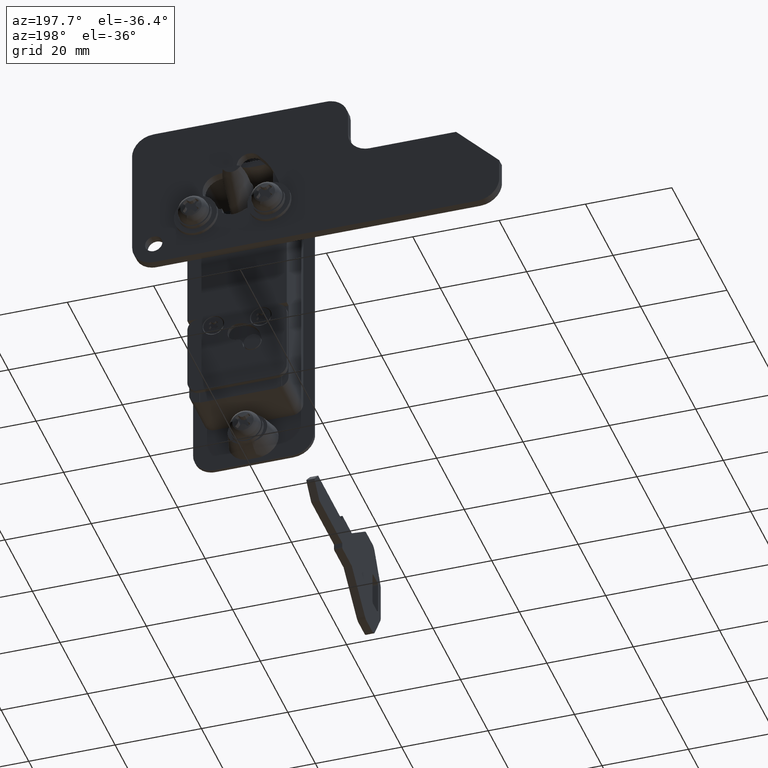
[diagram: clean part render]
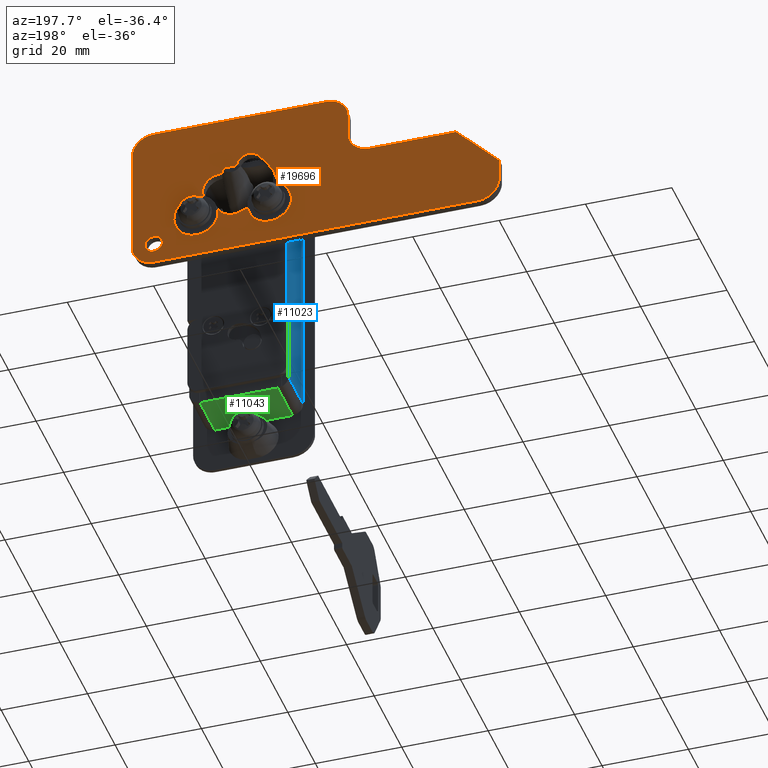
[diagram: same view with three faces highlighted in distinct colors, each labeled with its STEP entity id]
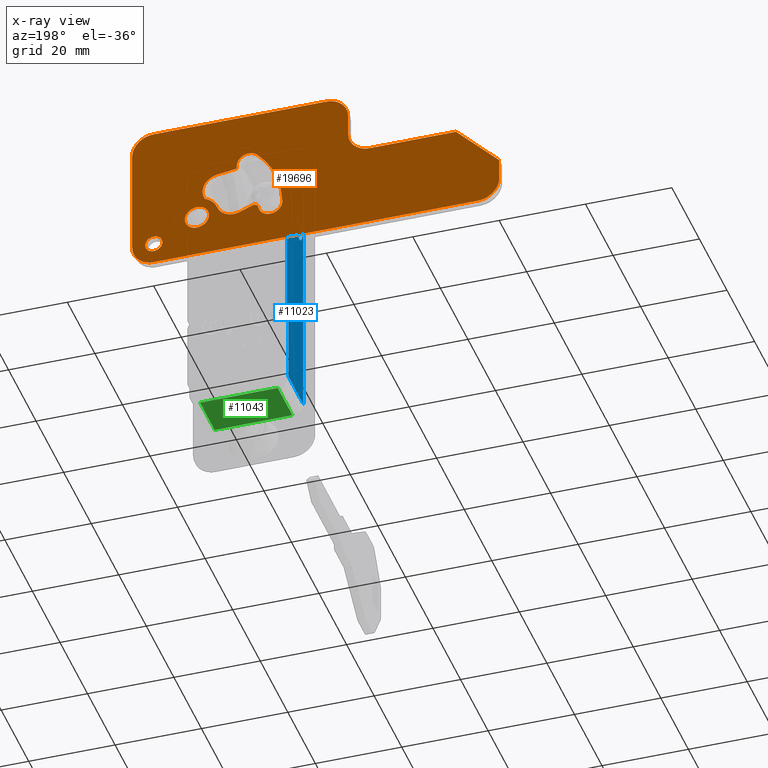
[diagram: x-ray of the same camera — body ghosted, the three highlighted faces saturated]
A machine part, auxiliary view with three faces highlighted in distinct colors.
The next image is the same camera in x-ray (body ghosted, the three faces saturated) — at least one of them is partly hidden behind the body in this view.
Their STEP definitions:

[orange] entity #19696 — the highlighted face is a freeform B-spline surface patch.
#18353=CARTESIAN_POINT('',(2.0,-16.506165332546960,-5.156918191623599));
#18354=VERTEX_POINT('',#18353);
#18360=CARTESIAN_POINT('',(2.0,-18.500000000000000,-3.0));
#18361=VERTEX_POINT('',#18360);
#18362=CARTESIAN_POINT('',(2.000000000000000,-16.506165332546960,-5.156918191623599));
#18363=CARTESIAN_POINT('',(2.000000000000000,-16.499999999999996,-5.078580214184028));
#18364=CARTESIAN_POINT('',(2.0,-16.500000000000000,-5.0));
#18365=CARTESIAN_POINT('',(2.000000000000000,-16.499999999999993,-3.0));
#18366=CARTESIAN_POINT('',(2.0,-18.500000000000000,-3.0));
#18374=(BOUNDED_CURVE()B_SPLINE_CURVE(2,(#18362,#18363,#18364,#18365,#18366),.UNSPECIFIED.,.F.,.U.)B_SPLINE_CURVE_WITH_KNOTS((3,2,3),(0.736331300603894,0.750000000000000,1.0),.UNSPECIFIED.)CURVE()GEOMETRIC_REPRESENTATION_ITEM()RATIONAL_B_SPLINE_CURVE((0.969723356111561,0.983986122547524,1.0,0.707106781186548,1.0))REPRESENTATION_ITEM(''));
#18375=EDGE_CURVE('',#18354,#18361,#18374,.T.);
#18377=CARTESIAN_POINT('',(2.0,-20.493834667453040,-4.843081808376400));
#18378=VERTEX_POINT('',#18377);
#18379=CARTESIAN_POINT('',(2.0,-18.500000000000000,-3.0));
#18380=CARTESIAN_POINT('',(1.999999999999999,-20.348780983004065,-3.000000000000001));
#18381=CARTESIAN_POINT('',(2.0,-20.493834667453040,-4.843081808376400));
#18389=(BOUNDED_CURVE()B_SPLINE_CURVE(2,(#18379,#18380,#18381),.UNSPECIFIED.,.F.,.U.)B_SPLINE_CURVE_WITH_KNOTS((3,3),(0.0,0.236331300603894),.UNSPECIFIED.)CURVE()GEOMETRIC_REPRESENTATION_ITEM()RATIONAL_B_SPLINE_CURVE((1.0,0.723120658639023,0.969723356111560))REPRESENTATION_ITEM(''));
#18390=EDGE_CURVE('',#18361,#18378,#18389,.T.);
#18436=CARTESIAN_POINT('',(2.0,-18.500000000000000,-7.0));
#18437=VERTEX_POINT('',#18436);
#18438=CARTESIAN_POINT('',(2.000000000000000,-20.493834667453040,-4.843081808376400));
#18439=CARTESIAN_POINT('',(2.000000000000000,-20.500000000000000,-4.921419785815973));
#18440=CARTESIAN_POINT('',(2.0,-20.500000000000000,-5.0));
#18441=CARTESIAN_POINT('',(2.000000000000000,-20.499999999999993,-6.999999999999999));
#18442=CARTESIAN_POINT('',(2.0,-18.500000000000000,-7.0));
#18450=(BOUNDED_CURVE()B_SPLINE_CURVE(2,(#18438,#18439,#18440,#18441,#18442),.UNSPECIFIED.,.F.,.U.)B_SPLINE_CURVE_WITH_KNOTS((3,2,3),(0.236331300603894,0.250000000000000,0.500000000000000),.UNSPECIFIED.)CURVE()GEOMETRIC_REPRESENTATION_ITEM()RATIONAL_B_SPLINE_CURVE((0.969723356111561,0.983986122547524,1.0,0.707106781186548,1.0))REPRESENTATION_ITEM(''));
#18451=EDGE_CURVE('',#18378,#18437,#18450,.T.);
#18453=CARTESIAN_POINT('',(2.0,-18.500000000000000,-7.0));
#18454=CARTESIAN_POINT('',(2.0,-16.651219016995945,-6.999999999999999));
#18455=CARTESIAN_POINT('',(2.000000000000000,-16.506165332546960,-5.156918191623599));
#18463=(BOUNDED_CURVE()B_SPLINE_CURVE(2,(#18453,#18454,#18455),.UNSPECIFIED.,.F.,.U.)B_SPLINE_CURVE_WITH_KNOTS((3,3),(0.500000000000000,0.736331300603894),.UNSPECIFIED.)CURVE()GEOMETRIC_REPRESENTATION_ITEM()RATIONAL_B_SPLINE_CURVE((1.0,0.723120658639024,0.969723356111559))REPRESENTATION_ITEM(''));
#18464=EDGE_CURVE('',#18437,#18354,#18463,.T.);
#18535=CARTESIAN_POINT('',(2.0,-5.708631465581616,-0.219685468476010));
#18536=VERTEX_POINT('',#18535);
#18542=CARTESIAN_POINT('',(2.0,-8.499999999999901,2.799999999999999));
#18543=VERTEX_POINT('',#18542);
#18544=CARTESIAN_POINT('',(2.0,-5.708631465581616,-0.219685468476010));
#18545=CARTESIAN_POINT('',(2.000000000000000,-5.699999999999900,-0.110012300061551));
#18546=CARTESIAN_POINT('',(2.0,-5.699999999999900,-5.204577E-016));
#18547=CARTESIAN_POINT('',(2.0,-5.699999999999899,2.800000000000000));
#18548=CARTESIAN_POINT('',(2.0,-8.499999999999901,2.799999999999999));
#18556=(BOUNDED_CURVE()B_SPLINE_CURVE(2,(#18544,#18545,#18546,#18547,#18548),.UNSPECIFIED.,.F.,.U.)B_SPLINE_CURVE_WITH_KNOTS((3,2,3),(0.736331300578964,0.750000000000000,1.0),.UNSPECIFIED.)CURVE()GEOMETRIC_REPRESENTATION_ITEM()RATIONAL_B_SPLINE_CURVE((0.969723356059534,0.983986122518317,1.0,0.707106781186547,1.0))REPRESENTATION_ITEM(''));
#18557=EDGE_CURVE('',#18536,#18543,#18556,.T.);
#18559=CARTESIAN_POINT('',(2.0,-11.291368534418179,0.219685468476008));
#18560=VERTEX_POINT('',#18559);
#18561=CARTESIAN_POINT('',(2.0,-8.499999999999901,2.799999999999999));
#18562=CARTESIAN_POINT('',(2.000000000000000,-11.088293375828023,2.800000000000001));
#18563=CARTESIAN_POINT('',(2.000000000000000,-11.291368534418188,0.219685468476008));
#18571=(BOUNDED_CURVE()B_SPLINE_CURVE(2,(#18561,#18562,#18563),.UNSPECIFIED.,.F.,.U.)B_SPLINE_CURVE_WITH_KNOTS((3,3),(0.0,0.236331300578965),.UNSPECIFIED.)CURVE()GEOMETRIC_REPRESENTATION_ITEM()RATIONAL_B_SPLINE_CURVE((1.0,0.723120658668230,0.969723356059534))REPRESENTATION_ITEM(''));
#18572=EDGE_CURVE('',#18543,#18560,#18571,.T.);
#18618=CARTESIAN_POINT('',(2.0,-8.499999999999901,-2.800000000000000));
#18619=VERTEX_POINT('',#18618);
#18620=CARTESIAN_POINT('',(2.0,-11.291368534418181,0.219685468476008));
#18621=CARTESIAN_POINT('',(2.000000000000000,-11.299999999999901,0.110012300061549));
#18622=CARTESIAN_POINT('',(2.0,-11.299999999999899,-5.204577E-016));
#18623=CARTESIAN_POINT('',(2.0,-11.299999999999901,-2.800000000000000));
#18624=CARTESIAN_POINT('',(2.0,-8.499999999999901,-2.800000000000000));
#18632=(BOUNDED_CURVE()B_SPLINE_CURVE(2,(#18620,#18621,#18622,#18623,#18624),.UNSPECIFIED.,.F.,.U.)B_SPLINE_CURVE_WITH_KNOTS((3,2,3),(0.236331300578965,0.250000000000000,0.500000000000000),.UNSPECIFIED.)CURVE()GEOMETRIC_REPRESENTATION_ITEM()RATIONAL_B_SPLINE_CURVE((0.969723356059534,0.983986122518317,1.0,0.707106781186547,1.0))REPRESENTATION_ITEM(''));
#18633=EDGE_CURVE('',#18560,#18619,#18632,.T.);
#18635=CARTESIAN_POINT('',(2.0,-8.499999999999901,-2.800000000000000));
#18636=CARTESIAN_POINT('',(2.000000000000000,-5.911706624171777,-2.800000000000001));
#18637=CARTESIAN_POINT('',(2.000000000000000,-5.708631465581616,-0.219685468476010));
#18645=(BOUNDED_CURVE()B_SPLINE_CURVE(2,(#18635,#18636,#18637),.UNSPECIFIED.,.F.,.U.)B_SPLINE_CURVE_WITH_KNOTS((3,3),(0.500000000000000,0.736331300578965),.UNSPECIFIED.)CURVE()GEOMETRIC_REPRESENTATION_ITEM()RATIONAL_B_SPLINE_CURVE((1.0,0.723120658668230,0.969723356059534))REPRESENTATION_ITEM(''));
#18646=EDGE_CURVE('',#18619,#18536,#18645,.T.);
#18698=CARTESIAN_POINT('',(2.0,-3.724927298301265,10.682482456983440));
#18699=VERTEX_POINT('',#18698);
#18705=CARTESIAN_POINT('',(2.0,-6.619694577197700,4.647948377065371));
#18706=VERTEX_POINT('',#18705);
#18707=CARTESIAN_POINT('',(2.0,-3.724927298301267,10.682482456983440));
#18708=CARTESIAN_POINT('',(2.000000000000000,-5.868083674446925,10.396962948355025));
#18709=CARTESIAN_POINT('',(2.0,-6.803212923379731,8.447559467745744));
#18710=CARTESIAN_POINT('',(2.000000000000000,-7.738342172312537,6.498155987136467));
#18711=CARTESIAN_POINT('',(2.0,-6.619694577197700,4.647948377065371));
#18719=(BOUNDED_CURVE()B_SPLINE_CURVE(2,(#18707,#18708,#18709,#18710,#18711),.UNSPECIFIED.,.F.,.U.)B_SPLINE_CURVE_WITH_KNOTS((3,2,3),(0.0,0.500000000000000,1.0),.UNSPECIFIED.)CURVE()GEOMETRIC_REPRESENTATION_ITEM()RATIONAL_B_SPLINE_CURVE((1.0,0.879712993348293,1.0,0.879712993348293,1.0))REPRESENTATION_ITEM(''));
#18720=EDGE_CURVE('',#18699,#18706,#18719,.T.);
#18760=CARTESIAN_POINT('',(2.0,-3.771961330339195,1.668719517747750));
#18761=VERTEX_POINT('',#18760);
#18762=CARTESIAN_POINT('',(2.0,-3.771961330339195,1.668719517747750));
#18763=CARTESIAN_POINT('',(2.0,-4.524267581803403,3.800253346292745));
#18764=CARTESIAN_POINT('',(2.0,-6.619694577197699,4.647948377065373));
#18772=(BOUNDED_CURVE()B_SPLINE_CURVE(2,(#18762,#18763,#18764),.UNSPECIFIED.,.F.,.U.)CURVE()GEOMETRIC_REPRESENTATION_ITEM()QUASI_UNIFORM_CURVE()RATIONAL_B_SPLINE_CURVE((1.0,0.911638687039026,1.0))REPRESENTATION_ITEM(''));
#18773=EDGE_CURVE('',#18761,#18706,#18772,.T.);
#18815=CARTESIAN_POINT('',(2.0,1.452227357557548,-0.727067976568367));
#18816=VERTEX_POINT('',#18815);
#18817=CARTESIAN_POINT('',(2.0,-3.771961330339194,1.668719517747751));
#18818=CARTESIAN_POINT('',(2.000000000000000,-3.207907948622407,0.070568284820988));
#18819=CARTESIAN_POINT('',(2.0,-1.667405426283513,-0.635898670810326));
#18820=CARTESIAN_POINT('',(2.000000000000000,-0.126902903944619,-1.342365626441640));
#18821=CARTESIAN_POINT('',(2.0,1.452227357557548,-0.727067976568368));
#18829=(BOUNDED_CURVE()B_SPLINE_CURVE(2,(#18817,#18818,#18819,#18820,#18821),.UNSPECIFIED.,.F.,.U.)B_SPLINE_CURVE_WITH_KNOTS((3,2,3),(0.0,0.500000000000000,1.0),.UNSPECIFIED.)CURVE()GEOMETRIC_REPRESENTATION_ITEM()RATIONAL_B_SPLINE_CURVE((1.0,0.920763774771993,1.0,0.920763774771993,1.0))REPRESENTATION_ITEM(''));
#18830=EDGE_CURVE('',#18761,#18816,#18829,.T.);
#18853=CARTESIAN_POINT('',(2.0,4.372808160610620,0.410916994142096));
#18854=VERTEX_POINT('',#18853);
#18855=CARTESIAN_POINT('',(2.0,4.372808160610620,0.410916994142096));
#18856=CARTESIAN_POINT('',(2.0,1.452227357557548,-0.727067976568367));
#18857=QUASI_UNIFORM_CURVE('',1,(#18855,#18856),.UNSPECIFIED.,.F.,.U.);
#18858=EDGE_CURVE('',#18854,#18816,#18857,.T.);
#18900=CARTESIAN_POINT('',(2.0,5.726426587349770,-0.383784476809226));
#18901=VERTEX_POINT('',#18900);
#18902=CARTESIAN_POINT('',(2.0,5.726426587349770,-0.383784476809226));
#18903=CARTESIAN_POINT('',(2.000000000000000,5.660011899428978,0.096192027627182));
#18904=CARTESIAN_POINT('',(2.0,5.242153711748959,0.341514041664296));
#18905=CARTESIAN_POINT('',(2.000000000000000,4.824295524068941,0.586836055701410));
#18906=CARTESIAN_POINT('',(2.0,4.372808160610621,0.410916994142095));
#18914=(BOUNDED_CURVE()B_SPLINE_CURVE(2,(#18902,#18903,#18904,#18905,#18906),.UNSPECIFIED.,.F.,.U.)B_SPLINE_CURVE_WITH_KNOTS((3,2,3),(0.0,0.500000000000000,1.0),.UNSPECIFIED.)CURVE()GEOMETRIC_REPRESENTATION_ITEM()RATIONAL_B_SPLINE_CURVE((1.0,0.899919655150301,1.0,0.899919655150301,1.0))REPRESENTATION_ITEM(''));
#18915=EDGE_CURVE('',#18901,#18854,#18914,.T.);
#18961=CARTESIAN_POINT('',(2.0,11.300000000000001,-5.204577E-016));
#18962=VERTEX_POINT('',#18961);
#18963=CARTESIAN_POINT('',(2.0,5.726426587349766,-0.383784476809225));
#18964=CARTESIAN_POINT('',(2.000000000000000,6.084693240334018,-2.972943036888907));
#18965=CARTESIAN_POINT('',(2.0,8.692346620167008,-2.793385540470618));
#18966=CARTESIAN_POINT('',(2.000000000000000,11.300000000000001,-2.613828044052329));
#18967=CARTESIAN_POINT('',(2.0,11.300000000000001,5.204577E-016));
#18975=(BOUNDED_CURVE()B_SPLINE_CURVE(2,(#18963,#18964,#18965,#18966,#18967),.UNSPECIFIED.,.F.,.U.)B_SPLINE_CURVE_WITH_KNOTS((3,2,3),(0.0,0.500000000000000,1.0),.UNSPECIFIED.)CURVE()GEOMETRIC_REPRESENTATION_ITEM()RATIONAL_B_SPLINE_CURVE((1.0,0.730990841764867,1.0,0.730990841764867,1.0))REPRESENTATION_ITEM(''));
#18976=EDGE_CURVE('',#18901,#18962,#18975,.T.);
#19016=CARTESIAN_POINT('',(2.0,5.500713987322430,14.000713987322120));
#19017=VERTEX_POINT('',#19016);
#19018=CARTESIAN_POINT('',(2.0,11.300000000000001,-5.204577E-016));
#19019=CARTESIAN_POINT('',(2.000000000000000,11.300000000000098,8.201428534987187));
#19020=CARTESIAN_POINT('',(2.0,5.500713987322430,14.000713987322120));
#19028=(BOUNDED_CURVE()B_SPLINE_CURVE(2,(#19018,#19019,#19020),.UNSPECIFIED.,.F.,.U.)CURVE()GEOMETRIC_REPRESENTATION_ITEM()QUASI_UNIFORM_CURVE()RATIONAL_B_SPLINE_CURVE((1.0,0.923879532511288,1.0))REPRESENTATION_ITEM(''));
#19029=EDGE_CURVE('',#18962,#19017,#19028,.T.);
#19075=CARTESIAN_POINT('',(2.0,0.720815000000101,12.020814999999800));
#19076=VERTEX_POINT('',#19075);
#19077=CARTESIAN_POINT('',(2.0,5.500713987322439,14.000713987322129));
#19078=CARTESIAN_POINT('',(2.000000000000000,4.177787778755605,15.323640195888975));
#19079=CARTESIAN_POINT('',(2.0,2.449301389377853,14.607677691031411));
#19080=CARTESIAN_POINT('',(2.000000000000000,0.720815000000100,13.891715186173842));
#19081=CARTESIAN_POINT('',(2.0,0.720815000000100,12.020814999999800));
#19089=(BOUNDED_CURVE()B_SPLINE_CURVE(2,(#19077,#19078,#19079,#19080,#19081),.UNSPECIFIED.,.F.,.U.)B_SPLINE_CURVE_WITH_KNOTS((3,2,3),(0.0,0.500000000000000,1.0),.UNSPECIFIED.)CURVE()GEOMETRIC_REPRESENTATION_ITEM()RATIONAL_B_SPLINE_CURVE((1.0,0.831469612302545,1.0,0.831469612302545,1.0))REPRESENTATION_ITEM(''));
#19090=EDGE_CURVE('',#19017,#19076,#19089,.T.);
#19113=CARTESIAN_POINT('',(2.0,0.720815000000101,11.274762000000001));
#19114=VERTEX_POINT('',#19113);
#19115=CARTESIAN_POINT('',(2.0,0.720815000000101,11.274762000000001));
#19116=CARTESIAN_POINT('',(2.0,0.720815000000101,12.020814999999800));
#19117=QUASI_UNIFORM_CURVE('',1,(#19115,#19116),.UNSPECIFIED.,.F.,.U.);
#19118=EDGE_CURVE('',#19114,#19076,#19117,.T.);
#19139=CARTESIAN_POINT('',(2.0,-3.724927298301265,10.682482456983440));
#19140=CARTESIAN_POINT('',(2.0,0.720815000000101,11.274762000000001));
#19141=QUASI_UNIFORM_CURVE('',1,(#19139,#19140),.UNSPECIFIED.,.F.,.U.);
#19142=EDGE_CURVE('',#18699,#19114,#19141,.T.);
#19162=CARTESIAN_POINT('',(2.0,26.500000000000000,20.0));
#19163=VERTEX_POINT('',#19162);
#19169=CARTESIAN_POINT('',(2.0,26.500000000000000,15.0));
#19170=VERTEX_POINT('',#19169);
#19171=CARTESIAN_POINT('',(2.0,26.500000000000000,15.0));
#19172=CARTESIAN_POINT('',(2.0,26.500000000000000,20.0));
#19173=QUASI_UNIFORM_CURVE('',1,(#19171,#19172),.UNSPECIFIED.,.F.,.U.);
#19174=EDGE_CURVE('',#19170,#19163,#19173,.T.);
#19214=CARTESIAN_POINT('',(2.0,31.500000000000000,10.0));
#19215=VERTEX_POINT('',#19214);
#19216=CARTESIAN_POINT('',(2.0,26.500000000000000,15.0));
#19217=CARTESIAN_POINT('',(2.000000000000000,26.500000000000000,9.999999999999998));
#19218=CARTESIAN_POINT('',(2.0,31.500000000000000,9.999999999999998));
#19226=(BOUNDED_CURVE()B_SPLINE_CURVE(2,(#19216,#19217,#19218),.UNSPECIFIED.,.F.,.U.)CURVE()GEOMETRIC_REPRESENTATION_ITEM()QUASI_UNIFORM_CURVE()RATIONAL_B_SPLINE_CURVE((1.0,0.707106781186548,1.0))REPRESENTATION_ITEM(''));
#19227=EDGE_CURVE('',#19170,#19215,#19226,.T.);
#19250=CARTESIAN_POINT('',(2.0,51.500000000000000,10.0));
#19251=VERTEX_POINT('',#19250);
#19252=CARTESIAN_POINT('',(2.0,51.500000000000000,10.0));
#19253=CARTESIAN_POINT('',(2.0,31.500000000000000,10.0));
#19254=QUASI_UNIFORM_CURVE('',1,(#19252,#19253),.UNSPECIFIED.,.F.,.U.);
#19255=EDGE_CURVE('',#19251,#19215,#19254,.T.);
#19278=CARTESIAN_POINT('',(2.0,61.500000000000000,3.765665E-015));
#19279=VERTEX_POINT('',#19278);
#19280=CARTESIAN_POINT('',(2.0,61.500000000000000,3.765665E-015));
#19281=CARTESIAN_POINT('',(2.0,51.500000000000000,10.0));
#19282=QUASI_UNIFORM_CURVE('',1,(#19280,#19281),.UNSPECIFIED.,.F.,.U.);
#19283=EDGE_CURVE('',#19279,#19251,#19282,.T.);
#19306=CARTESIAN_POINT('',(2.0,61.500000000000000,-5.0));
#19307=VERTEX_POINT('',#19306);
#19308=CARTESIAN_POINT('',(2.0,61.500000000000000,-5.0));
#19309=CARTESIAN_POINT('',(2.0,61.500000000000000,3.765665E-015));
#19310=QUASI_UNIFORM_CURVE('',1,(#19308,#19309),.UNSPECIFIED.,.F.,.U.);
#19311=EDGE_CURVE('',#19307,#19279,#19310,.T.);
#19351=CARTESIAN_POINT('',(2.0,56.500000000000000,-10.0));
#19352=VERTEX_POINT('',#19351);
#19353=CARTESIAN_POINT('',(2.0,56.500000000000000,-10.0));
#19354=CARTESIAN_POINT('',(2.000000000000000,61.500000000000007,-10.000000000000002));
#19355=CARTESIAN_POINT('',(2.0,61.500000000000000,-5.0));
#19363=(BOUNDED_CURVE()B_SPLINE_CURVE(2,(#19353,#19354,#19355),.UNSPECIFIED.,.F.,.U.)CURVE()GEOMETRIC_REPRESENTATION_ITEM()QUASI_UNIFORM_CURVE()RATIONAL_B_SPLINE_CURVE((1.0,0.707106781186548,1.0))REPRESENTATION_ITEM(''));
#19364=EDGE_CURVE('',#19352,#19307,#19363,.T.);
#19387=CARTESIAN_POINT('',(2.0,-18.500000000000000,-10.0));
#19388=VERTEX_POINT('',#19387);
#19389=CARTESIAN_POINT('',(2.0,-18.500000000000000,-10.0));
#19390=CARTESIAN_POINT('',(2.0,56.500000000000000,-10.0));
#19391=QUASI_UNIFORM_CURVE('',1,(#19389,#19390),.UNSPECIFIED.,.F.,.U.);
#19392=EDGE_CURVE('',#19388,#19352,#19391,.T.);
#19432=CARTESIAN_POINT('',(2.0,-23.500000000000000,-5.0));
#19433=VERTEX_POINT('',#19432);
#19434=CARTESIAN_POINT('',(2.0,-23.500000000000000,-5.0));
#19435=CARTESIAN_POINT('',(2.000000000000000,-23.500000000000004,-10.000000000000002));
#19436=CARTESIAN_POINT('',(2.0,-18.500000000000000,-10.0));
#19444=(BOUNDED_CURVE()B_SPLINE_CURVE(2,(#19434,#19435,#19436),.UNSPECIFIED.,.F.,.U.)CURVE()GEOMETRIC_REPRESENTATION_ITEM()QUASI_UNIFORM_CURVE()RATIONAL_B_SPLINE_CURVE((1.0,0.707106781186548,1.0))REPRESENTATION_ITEM(''));
#19445=EDGE_CURVE('',#19433,#19388,#19444,.T.);
#19468=CARTESIAN_POINT('',(2.0,-23.500000000000000,20.0));
#19469=VERTEX_POINT('',#19468);
#19470=CARTESIAN_POINT('',(2.0,-23.500000000000000,20.0));
#19471=CARTESIAN_POINT('',(2.0,-23.500000000000000,-5.0));
#19472=QUASI_UNIFORM_CURVE('',1,(#19470,#19471),.UNSPECIFIED.,.F.,.U.);
#19473=EDGE_CURVE('',#19469,#19433,#19472,.T.);
#19513=CARTESIAN_POINT('',(2.0,-18.500000000000000,25.0));
#19514=VERTEX_POINT('',#19513);
#19515=CARTESIAN_POINT('',(2.0,-18.500000000000000,25.0));
#19516=CARTESIAN_POINT('',(2.000000000000000,-23.500000000000004,25.0));
#19517=CARTESIAN_POINT('',(2.0,-23.500000000000000,20.0));
#19525=(BOUNDED_CURVE()B_SPLINE_CURVE(2,(#19515,#19516,#19517),.UNSPECIFIED.,.F.,.U.)CURVE()GEOMETRIC_REPRESENTATION_ITEM()QUASI_UNIFORM_CURVE()RATIONAL_B_SPLINE_CURVE((1.0,0.707106781186548,1.0))REPRESENTATION_ITEM(''));
#19526=EDGE_CURVE('',#19514,#19469,#19525,.T.);
#19549=CARTESIAN_POINT('',(2.0,21.500000000000000,25.0));
#19550=VERTEX_POINT('',#19549);
#19551=CARTESIAN_POINT('',(2.0,21.500000000000000,25.0));
#19552=CARTESIAN_POINT('',(2.0,-18.500000000000000,25.0));
#19553=QUASI_UNIFORM_CURVE('',1,(#19551,#19552),.UNSPECIFIED.,.F.,.U.);
#19554=EDGE_CURVE('',#19550,#19514,#19553,.T.);
#19592=CARTESIAN_POINT('',(2.0,26.500000000000000,20.0));
#19593=CARTESIAN_POINT('',(2.000000000000000,26.500000000000000,25.0));
#19594=CARTESIAN_POINT('',(2.0,21.500000000000000,25.0));
#19602=(BOUNDED_CURVE()B_SPLINE_CURVE(2,(#19592,#19593,#19594),.UNSPECIFIED.,.F.,.U.)CURVE()GEOMETRIC_REPRESENTATION_ITEM()QUASI_UNIFORM_CURVE()RATIONAL_B_SPLINE_CURVE((1.0,0.707106781186548,1.0))REPRESENTATION_ITEM(''));
#19603=EDGE_CURVE('',#19163,#19550,#19602,.T.);
#19653=CARTESIAN_POINT('',(2.0,-27.745749835253509,26.748249932163208));
#19654=CARTESIAN_POINT('',(2.0,65.745752115131168,26.748249932163208));
#19655=CARTESIAN_POINT('',(2.0,-27.745749835253509,-11.748250870936360));
#19656=CARTESIAN_POINT('',(2.0,65.745752115131168,-11.748250870936360));
#19657=B_SPLINE_SURFACE_WITH_KNOTS('',1,1,((#19653,#19655),(#19654,#19656)),.UNSPECIFIED.,.F.,.F.,.U.,(2,2),(2,2),(0.0,93.491501950384674),(0.0,38.496500803099572),.UNSPECIFIED.);
#19658=ORIENTED_EDGE('',*,*,#19603,.T.);
#19659=ORIENTED_EDGE('',*,*,#19554,.T.);
#19660=ORIENTED_EDGE('',*,*,#19526,.T.);
#19661=ORIENTED_EDGE('',*,*,#19473,.T.);
#19662=ORIENTED_EDGE('',*,*,#19445,.T.);
#19663=ORIENTED_EDGE('',*,*,#19392,.T.);
#19664=ORIENTED_EDGE('',*,*,#19364,.T.);
#19665=ORIENTED_EDGE('',*,*,#19311,.T.);
#19666=ORIENTED_EDGE('',*,*,#19283,.T.);
#19667=ORIENTED_EDGE('',*,*,#19255,.T.);
#19668=ORIENTED_EDGE('',*,*,#19227,.F.);
#19669=ORIENTED_EDGE('',*,*,#19174,.T.);
#19670=EDGE_LOOP('',(#19658,#19659,#19660,#19661,#19662,#19663,#19664,#19665,#19666,#19667,#19668,#19669));
#19671=FACE_OUTER_BOUND('',#19670,.T.);
#19672=ORIENTED_EDGE('',*,*,#19142,.T.);
#19673=ORIENTED_EDGE('',*,*,#19118,.T.);
#19674=ORIENTED_EDGE('',*,*,#19090,.F.);
#19675=ORIENTED_EDGE('',*,*,#19029,.F.);
#19676=ORIENTED_EDGE('',*,*,#18976,.F.);
#19677=ORIENTED_EDGE('',*,*,#18915,.T.);
#19678=ORIENTED_EDGE('',*,*,#18858,.T.);
#19679=ORIENTED_EDGE('',*,*,#18830,.F.);
#19680=ORIENTED_EDGE('',*,*,#18773,.T.);
#19681=ORIENTED_EDGE('',*,*,#18720,.F.);
#19682=EDGE_LOOP('',(#19672,#19673,#19674,#19675,#19676,#19677,#19678,#19679,#19680,#19681));
#19683=FACE_BOUND('',#19682,.T.);
#19684=ORIENTED_EDGE('',*,*,#18646,.F.);
#19685=ORIENTED_EDGE('',*,*,#18633,.F.);
#19686=ORIENTED_EDGE('',*,*,#18572,.F.);
#19687=ORIENTED_EDGE('',*,*,#18557,.F.);
#19688=EDGE_LOOP('',(#19684,#19685,#19686,#19687));
#19689=FACE_BOUND('',#19688,.T.);
#19690=ORIENTED_EDGE('',*,*,#18464,.F.);
#19691=ORIENTED_EDGE('',*,*,#18451,.F.);
#19692=ORIENTED_EDGE('',*,*,#18390,.F.);
#19693=ORIENTED_EDGE('',*,*,#18375,.F.);
#19694=EDGE_LOOP('',(#19690,#19691,#19692,#19693));
#19695=FACE_BOUND('',#19694,.T.);
#19696=ADVANCED_FACE('',(#19671,#19683,#19689,#19695),#19657,.F.);

[blue] entity #11023 — the highlighted face is a freeform B-spline surface patch.
#7473=CARTESIAN_POINT('',(-8.992381896956347,11.500000000180190,-2.191990844483901));
#7474=VERTEX_POINT('',#7473);
#7480=CARTESIAN_POINT('',(-9.500000000000000,11.500000000000000,-2.250000000006411));
#7481=VERTEX_POINT('',#7480);
#7482=CARTESIAN_POINT('',(-9.500000000000000,11.500000000000000,-2.250000000006411));
#7483=CARTESIAN_POINT('',(-9.242876386899560,11.499999999999998,-2.250000000006412));
#7484=CARTESIAN_POINT('',(-8.992381896956347,11.500000000180188,-2.191990844483901));
#7492=(BOUNDED_CURVE()B_SPLINE_CURVE(2,(#7482,#7483,#7484),.UNSPECIFIED.,.F.,.U.)B_SPLINE_CURVE_WITH_KNOTS((3,3),(0.0,0.038577028440443),.UNSPECIFIED.)CURVE()GEOMETRIC_REPRESENTATION_ITEM()RATIONAL_B_SPLINE_CURVE((1.0,0.954804199871282,0.923556557078197))REPRESENTATION_ITEM(''));
#7493=EDGE_CURVE('',#7481,#7474,#7492,.T.);
#7495=CARTESIAN_POINT('',(-9.500000000000000,11.500000000000000,2.249999999993678));
#7496=VERTEX_POINT('',#7495);
#7497=CARTESIAN_POINT('',(-9.500000000000000,11.500000000000000,2.249999999993678));
#7498=CARTESIAN_POINT('',(-11.750000000000044,11.500000000000000,2.249999999993678));
#7499=CARTESIAN_POINT('',(-11.750000000000041,11.500000000000000,-6.366463E-012));
#7500=CARTESIAN_POINT('',(-11.750000000000044,11.500000000000000,-2.250000000006412));
#7501=CARTESIAN_POINT('',(-9.500000000000000,11.500000000000000,-2.250000000006411));
#7509=(BOUNDED_CURVE()B_SPLINE_CURVE(2,(#7497,#7498,#7499,#7500,#7501),.UNSPECIFIED.,.F.,.U.)B_SPLINE_CURVE_WITH_KNOTS((3,2,3),(0.500000000000000,0.750000000000000,1.0),.UNSPECIFIED.)CURVE()GEOMETRIC_REPRESENTATION_ITEM()RATIONAL_B_SPLINE_CURVE((1.0,0.707106781186548,1.0,0.707106781186548,1.0))REPRESENTATION_ITEM(''));
#7510=EDGE_CURVE('',#7496,#7481,#7509,.T.);
#7512=CARTESIAN_POINT('',(-7.250085672866086,11.500000000255991,-0.019634706768004));
#7513=VERTEX_POINT('',#7512);
#7514=CARTESIAN_POINT('',(-7.250085672866086,11.500000000255994,-0.019634706768005));
#7515=CARTESIAN_POINT('',(-7.249999999999956,11.500000000000000,-0.009817541241116));
#7516=CARTESIAN_POINT('',(-7.249999999999955,11.500000000000000,-6.366463E-012));
#7517=CARTESIAN_POINT('',(-7.249999999999955,11.500000000000000,2.249999999993678));
#7518=CARTESIAN_POINT('',(-9.500000000000000,11.500000000000000,2.249999999993678));
#7526=(BOUNDED_CURVE()B_SPLINE_CURVE(2,(#7514,#7515,#7516,#7517,#7518),.UNSPECIFIED.,.F.,.U.)B_SPLINE_CURVE_WITH_KNOTS((3,2,3),(0.248460105369385,0.250000000000000,0.500000000000000),.UNSPECIFIED.)CURVE()GEOMETRIC_REPRESENTATION_ITEM()RATIONAL_B_SPLINE_CURVE((0.996414027416240,0.998195901220023,1.0,0.707106781186548,1.0))REPRESENTATION_ITEM(''));
#7527=EDGE_CURVE('',#7513,#7496,#7526,.T.);
#7629=CARTESIAN_POINT('',(-8.992381896956347,11.500000000180188,-2.191990844483902));
#7630=CARTESIAN_POINT('',(-7.265553697851463,11.500000000000000,-1.792094439772864));
#7631=CARTESIAN_POINT('',(-7.250085672866086,11.500000000255996,-0.019634706768004));
#7639=(BOUNDED_CURVE()B_SPLINE_CURVE(2,(#7629,#7630,#7631),.UNSPECIFIED.,.F.,.U.)B_SPLINE_CURVE_WITH_KNOTS((3,3),(0.038577028440443,0.248460105369385),.UNSPECIFIED.)CURVE()GEOMETRIC_REPRESENTATION_ITEM()RATIONAL_B_SPLINE_CURVE((0.923556557078197,0.753549905935687,0.996414027416240))REPRESENTATION_ITEM(''));
#7640=EDGE_CURVE('',#7474,#7513,#7639,.T.);
#9750=CARTESIAN_POINT('',(-12.500000000000000,11.500000000000000,11.500000000000400));
#9751=VERTEX_POINT('',#9750);
#9772=CARTESIAN_POINT('',(0.0,11.500000000000000,11.500000000000400));
#9773=VERTEX_POINT('',#9772);
#9787=CARTESIAN_POINT('',(-12.500000000000000,11.500000000000000,11.500000000000400));
#9788=CARTESIAN_POINT('',(0.0,11.500000000000000,11.500000000000400));
#9789=QUASI_UNIFORM_CURVE('',1,(#9787,#9788),.UNSPECIFIED.,.F.,.U.);
#9790=EDGE_CURVE('',#9751,#9773,#9789,.T.);
#9915=CARTESIAN_POINT('',(-12.500000000000000,11.500000000000000,-45.500000000000000));
#9916=VERTEX_POINT('',#9915);
#9930=CARTESIAN_POINT('',(-1.800000000000095,11.500000000000000,-45.500000000000000));
#9931=VERTEX_POINT('',#9930);
#9932=CARTESIAN_POINT('',(-1.800000000000095,11.500000000000000,-45.500000000000000));
#9933=CARTESIAN_POINT('',(-12.500000000000000,11.500000000000000,-45.500000000000000));
#9934=QUASI_UNIFORM_CURVE('',1,(#9932,#9933),.UNSPECIFIED.,.F.,.U.);
#9935=EDGE_CURVE('',#9931,#9916,#9934,.T.);
#10970=CARTESIAN_POINT('',(-13.124374975772570,11.500000000000000,-48.347149889522960));
#10971=CARTESIAN_POINT('',(0.624375311048701,11.500000000000000,-48.347149889522960));
#10972=CARTESIAN_POINT('',(-13.124374975772580,11.500000000000000,14.347151418382500));
#10973=CARTESIAN_POINT('',(0.624375311048701,11.500000000000000,14.347151418382500));
#10974=B_SPLINE_SURFACE_WITH_KNOTS('',1,1,((#10970,#10972),(#10971,#10973)),.UNSPECIFIED.,.F.,.F.,.U.,(2,2),(2,2),(0.0,13.748750286821281),(0.0,62.694301307905462),.UNSPECIFIED.);
#10975=CARTESIAN_POINT('',(-1.800000000000095,11.500000000000000,-25.999999999999599));
#10976=VERTEX_POINT('',#10975);
#10977=CARTESIAN_POINT('',(-1.800000000000095,11.500000000000000,-25.999999999999599));
#10978=CARTESIAN_POINT('',(-1.800000000000095,11.500000000000000,-45.500000000000000));
#10979=QUASI_UNIFORM_CURVE('',1,(#10977,#10978),.UNSPECIFIED.,.F.,.U.);
#10980=EDGE_CURVE('',#10976,#9931,#10979,.T.);
#10981=ORIENTED_EDGE('',*,*,#10980,.T.);
#10982=ORIENTED_EDGE('',*,*,#9935,.T.);
#10983=CARTESIAN_POINT('',(-12.500000000000000,11.500000000000000,-45.500000000000000));
#10984=CARTESIAN_POINT('',(-12.500000000000000,11.500000000000000,11.500000000000400));
#10985=QUASI_UNIFORM_CURVE('',1,(#10983,#10984),.UNSPECIFIED.,.F.,.U.);
#10986=EDGE_CURVE('',#9916,#9751,#10985,.T.);
#10987=ORIENTED_EDGE('',*,*,#10986,.T.);
#10988=ORIENTED_EDGE('',*,*,#9790,.T.);
#10989=CARTESIAN_POINT('',(0.0,11.500000000000000,-6.999999999999600));
#10990=VERTEX_POINT('',#10989);
#10991=CARTESIAN_POINT('',(0.0,11.500000000000000,11.500000000000400));
#10992=CARTESIAN_POINT('',(0.0,11.500000000000000,-6.999999999999600));
#10993=QUASI_UNIFORM_CURVE('',1,(#10991,#10992),.UNSPECIFIED.,.F.,.U.);
#10994=EDGE_CURVE('',#9773,#10990,#10993,.T.);
#10995=ORIENTED_EDGE('',*,*,#10994,.T.);
#10996=CARTESIAN_POINT('',(-0.500000000000000,11.500000000000000,-6.999999999999600));
#10997=VERTEX_POINT('',#10996);
#10998=CARTESIAN_POINT('',(0.0,11.500000000000000,-6.999999999999600));
#10999=CARTESIAN_POINT('',(-0.500000000000000,11.500000000000000,-6.999999999999600));
#11000=QUASI_UNIFORM_CURVE('',1,(#10998,#10999),.UNSPECIFIED.,.F.,.U.);
#11001=EDGE_CURVE('',#10990,#10997,#11000,.T.);
#11002=ORIENTED_EDGE('',*,*,#11001,.T.);
#11003=CARTESIAN_POINT('',(-0.500000000000000,11.500000000000000,-25.999999999999599));
#11004=VERTEX_POINT('',#11003);
#11005=CARTESIAN_POINT('',(-0.500000000000000,11.500000000000000,-6.999999999999600));
#11006=CARTESIAN_POINT('',(-0.500000000000000,11.500000000000000,-25.999999999999599));
#11007=QUASI_UNIFORM_CURVE('',1,(#11005,#11006),.UNSPECIFIED.,.F.,.U.);
#11008=EDGE_CURVE('',#10997,#11004,#11007,.T.);
#11009=ORIENTED_EDGE('',*,*,#11008,.T.);
#11010=CARTESIAN_POINT('',(-0.500000000000000,11.500000000000000,-25.999999999999599));
#11011=CARTESIAN_POINT('',(-1.800000000000095,11.500000000000000,-25.999999999999599));
#11012=QUASI_UNIFORM_CURVE('',1,(#11010,#11011),.UNSPECIFIED.,.F.,.U.);
#11013=EDGE_CURVE('',#11004,#10976,#11012,.T.);
#11014=ORIENTED_EDGE('',*,*,#11013,.T.);
#11015=EDGE_LOOP('',(#10981,#10982,#10987,#10988,#10995,#11002,#11009,#11014));
#11016=FACE_OUTER_BOUND('',#11015,.T.);
#11017=ORIENTED_EDGE('',*,*,#7510,.T.);
#11018=ORIENTED_EDGE('',*,*,#7493,.T.);
#11019=ORIENTED_EDGE('',*,*,#7640,.T.);
#11020=ORIENTED_EDGE('',*,*,#7527,.T.);
#11021=EDGE_LOOP('',(#11017,#11018,#11019,#11020));
#11022=FACE_BOUND('',#11021,.T.);
#11023=ADVANCED_FACE('',(#11016,#11022),#10974,.F.);

[green] entity #11043 — the highlighted face is a freeform B-spline surface patch.
#9833=CARTESIAN_POINT('',(-12.500000000000000,-9.0,-48.0));
#9834=VERTEX_POINT('',#9833);
#9848=CARTESIAN_POINT('',(-1.800000000000025,-9.0,-48.0));
#9849=VERTEX_POINT('',#9848);
#9850=CARTESIAN_POINT('',(-1.800000000000025,-9.0,-48.0));
#9851=CARTESIAN_POINT('',(-12.500000000000000,-9.0,-48.0));
#9852=QUASI_UNIFORM_CURVE('',1,(#9850,#9851),.UNSPECIFIED.,.F.,.U.);
#9853=EDGE_CURVE('',#9849,#9834,#9852,.T.);
#9901=CARTESIAN_POINT('',(-1.800000000000095,9.0,-48.0));
#9902=VERTEX_POINT('',#9901);
#9908=CARTESIAN_POINT('',(-12.500000000000000,9.0,-48.0));
#9909=VERTEX_POINT('',#9908);
#9910=CARTESIAN_POINT('',(-12.500000000000000,9.0,-48.0));
#9911=CARTESIAN_POINT('',(-1.800000000000095,9.0,-48.0));
#9912=QUASI_UNIFORM_CURVE('',1,(#9910,#9911),.UNSPECIFIED.,.F.,.U.);
#9913=EDGE_CURVE('',#9909,#9902,#9912,.T.);
#11024=CARTESIAN_POINT('',(-13.034464979261321,-9.899099965112507,-48.0));
#11025=CARTESIAN_POINT('',(-1.265534733742338,-9.899099965112507,-48.0));
#11026=CARTESIAN_POINT('',(-13.034464979261321,9.899100447910129,-48.0));
#11027=CARTESIAN_POINT('',(-1.265534733742338,9.899100447910129,-48.0));
#11028=B_SPLINE_SURFACE_WITH_KNOTS('',1,1,((#11024,#11026),(#11025,#11027)),.UNSPECIFIED.,.F.,.F.,.U.,(2,2),(2,2),(0.0,11.768930245518980),(0.0,19.798200413022631),.UNSPECIFIED.);
#11029=CARTESIAN_POINT('',(-12.500000000000000,9.0,-48.0));
#11030=CARTESIAN_POINT('',(-12.500000000000000,-9.0,-48.0));
#11031=QUASI_UNIFORM_CURVE('',1,(#11029,#11030),.UNSPECIFIED.,.F.,.U.);
#11032=EDGE_CURVE('',#9909,#9834,#11031,.T.);
#11033=ORIENTED_EDGE('',*,*,#11032,.F.);
#11034=ORIENTED_EDGE('',*,*,#9913,.T.);
#11035=CARTESIAN_POINT('',(-1.800000000000095,9.0,-48.0));
#11036=CARTESIAN_POINT('',(-1.800000000000025,-9.0,-48.0));
#11037=QUASI_UNIFORM_CURVE('',1,(#11035,#11036),.UNSPECIFIED.,.F.,.U.);
#11038=EDGE_CURVE('',#9902,#9849,#11037,.T.);
#11039=ORIENTED_EDGE('',*,*,#11038,.T.);
#11040=ORIENTED_EDGE('',*,*,#9853,.T.);
#11041=EDGE_LOOP('',(#11033,#11034,#11039,#11040));
#11042=FACE_OUTER_BOUND('',#11041,.T.);
#11043=ADVANCED_FACE('',(#11042),#11028,.F.);